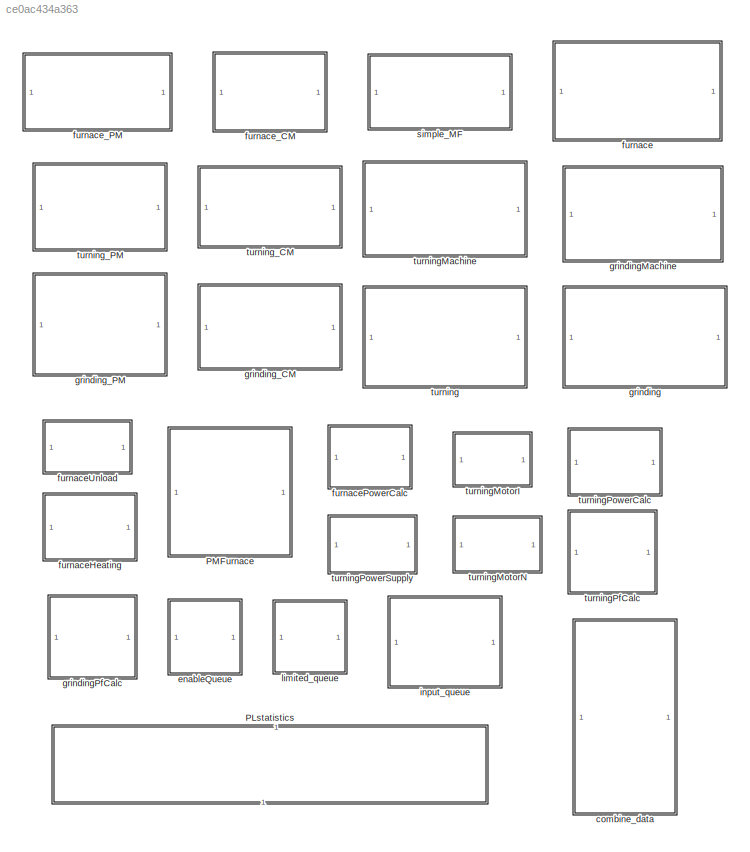
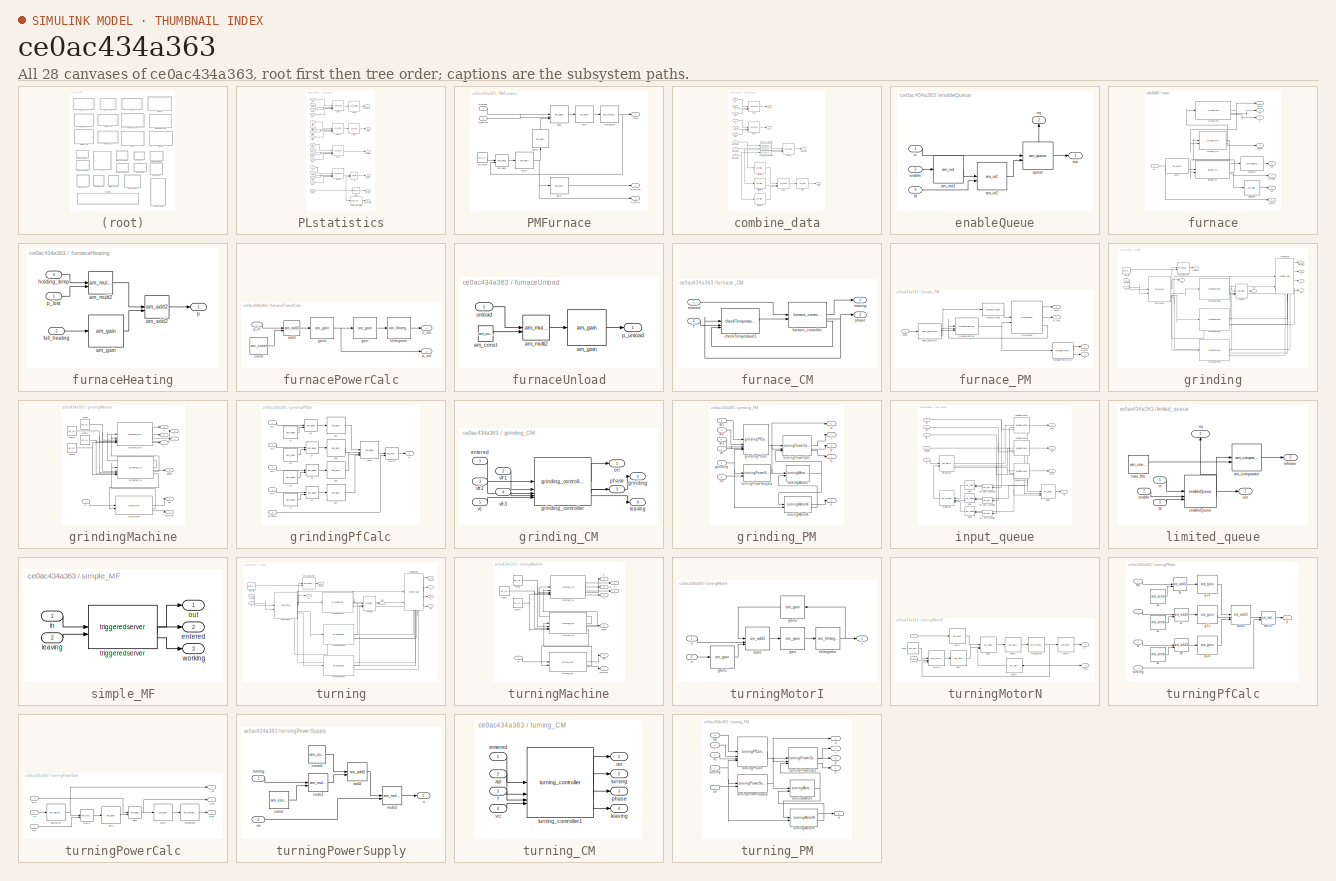
[diagram: thumbnail index - all 28 canvases of the model, root first then tree order]
MODEL slx_ce0ac434a363
KIND library
CONFIG AbsTol = auto
CONFIG EnableMultiTasking = off
CONFIG FixedStep = auto
CONFIG MaxStep = auto
CONFIG MinStep = auto
CONFIG RelTol = 1e-3
CONFIG SampleTimeConstraint = Unconstrained
CONFIG SolverName = VariableStepAuto
CONFIG StartTime = 0.0
CONFIG StopTime = 10.0
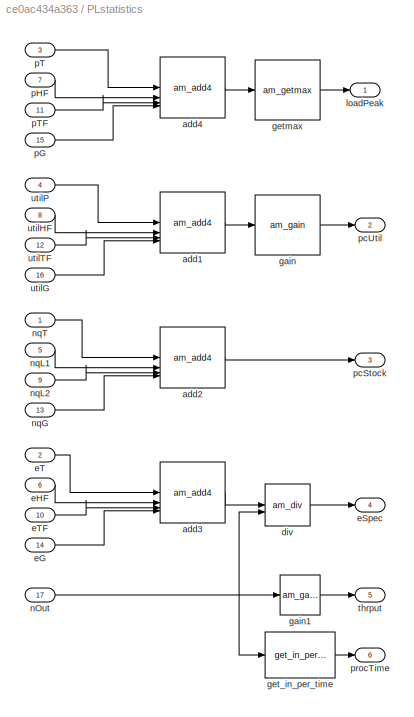
BLOCK [SubSystem] PLstatistics
  NameLocation = right
BLOCK [Reference] PLstatistics/add1  REF=NSA_DEVS_MATH_OPERATIONS/am_add4
  SourceBlock = NSA_DEVS_MATH_OPERATIONS/am_add4
  SourceProductName = Math Operations
  SourceType = Add4
BLOCK [Reference] PLstatistics/add2  REF=NSA_DEVS_MATH_OPERATIONS/am_add4
  SourceBlock = NSA_DEVS_MATH_OPERATIONS/am_add4
  SourceProductName = Math Operations
  SourceType = Add4
BLOCK [Reference] PLstatistics/add3  REF=NSA_DEVS_MATH_OPERATIONS/am_add4
  SourceBlock = NSA_DEVS_MATH_OPERATIONS/am_add4
  SourceProductName = Math Operations
  SourceType = Add4
BLOCK [Reference] PLstatistics/add4  REF=NSA_DEVS_MATH_OPERATIONS/am_add4
  SourceBlock = NSA_DEVS_MATH_OPERATIONS/am_add4
  SourceProductName = Math Operations
  SourceType = Add4
BLOCK [Reference] PLstatistics/div  REF=NSA_DEVS_MATH_OPERATIONS/am_div
  SourceBlock = NSA_DEVS_MATH_OPERATIONS/am_div
  SourceProductName = Math Operations
  SourceType = Div
BLOCK [Inport] PLstatistics/eG
  Port = 14
BLOCK [Inport] PLstatistics/eHF
  Port = 6
BLOCK [Outport] PLstatistics/eSpec
  Port = 4
BLOCK [Inport] PLstatistics/eT
  Port = 2
BLOCK [Inport] PLstatistics/eTF
  Port = 10
BLOCK [Reference] PLstatistics/gain  REF=NSA_DEVS_MATH_OPERATIONS/am_gain
  SourceBlock = NSA_DEVS_MATH_OPERATIONS/am_gain
  SourceProductName = Math Operations
  SourceType = Gain
BLOCK [Reference] PLstatistics/gain1  REF=NSA_DEVS_MATH_OPERATIONS/am_gain
  SourceBlock = NSA_DEVS_MATH_OPERATIONS/am_gain
  SourceProductName = Math Operations
  SourceType = Gain
BLOCK [Reference] PLstatistics/get_in_per_time  REF=ProductionLineLib_AM/get_in_per_time
  SourceBlock = ProductionLineLib_AM/get_in_per_time
  SourceType = Get_in_per_time
BLOCK [Reference] PLstatistics/getmax  REF=NSA_DEVS_STATISTICS/am_getmax
  SourceBlock = NSA_DEVS_STATISTICS/am_getmax
  SourceProductName = Statistics
  SourceType = Getmax
BLOCK [Outport] PLstatistics/loadPeak
BLOCK [Inport] PLstatistics/nOut
  Port = 17
BLOCK [Inport] PLstatistics/nqG
  Port = 13
BLOCK [Inport] PLstatistics/nqL1
  Port = 5
BLOCK [Inport] PLstatistics/nqL2
  Port = 9
BLOCK [Inport] PLstatistics/nqT
BLOCK [Inport] PLstatistics/pG
  Port = 15
BLOCK [Inport] PLstatistics/pHF
  Port = 7
BLOCK [Inport] PLstatistics/pT
  Port = 3
BLOCK [Inport] PLstatistics/pTF
  Port = 11
BLOCK [Outport] PLstatistics/pcStock
  Port = 3
BLOCK [Outport] PLstatistics/pcUtil
  Port = 2
BLOCK [Outport] PLstatistics/procTime
  Port = 6
BLOCK [Outport] PLstatistics/thrput
  Port = 5
BLOCK [Inport] PLstatistics/utilG
  Port = 16
BLOCK [Inport] PLstatistics/utilHF
  Port = 8
BLOCK [Inport] PLstatistics/utilP
  Port = 4
BLOCK [Inport] PLstatistics/utilTF
  Port = 12
BLOCK [SubSystem] PMFurnace
BLOCK [Outport] PMFurnace/Temp
BLOCK [Reference] PMFurnace/add3  REF=NSA_DEVS_MATH_OPERATIONS/am_add3
  SourceBlock = NSA_DEVS_MATH_OPERATIONS/am_add3
  SourceProductName = Math Operations
  SourceType = Add3
BLOCK [Reference] PMFurnace/am_add2  REF=NSA_DEVS_MATH_OPERATIONS/am_add2
  SourceBlock = NSA_DEVS_MATH_OPERATIONS/am_add2
  SourceProductName = Math Operations
  SourceType = Add2
BLOCK [Reference] PMFurnace/am_const  REF=NSA_DEVS_SOURCES/am_const
  SourceBlock = NSA_DEVS_SOURCES/am_const
  SourceProductName = Sources
  SourceType = Const
BLOCK [Reference] PMFurnace/gain  REF=NSA_DEVS_MATH_OPERATIONS/am_gain
  SourceBlock = NSA_DEVS_MATH_OPERATIONS/am_gain
  SourceProductName = Math Operations
  SourceType = Gain
BLOCK [Reference] PMFurnace/gain1  REF=NSA_DEVS_MATH_OPERATIONS/am_gain
  SourceBlock = NSA_DEVS_MATH_OPERATIONS/am_gain
  SourceProductName = Math Operations
  SourceType = Gain
BLOCK [Reference] PMFurnace/gain2  REF=NSA_DEVS_MATH_OPERATIONS/am_gain
  SourceBlock = NSA_DEVS_MATH_OPERATIONS/am_gain
  SourceProductName = Math Operations
  SourceType = Gain
BLOCK [Reference] PMFurnace/gain3  REF=NSA_DEVS_MATH_OPERATIONS/am_gain
  NameLocation = right
  SourceBlock = NSA_DEVS_MATH_OPERATIONS/am_gain
  SourceProductName = Math Operations
  SourceType = Gain
BLOCK [Reference] PMFurnace/hIntegrator  REF=NSA_DEVS_QSS/am_hIntegrator
  SourceBlock = NSA_DEVS_QSS/am_hIntegrator
  SourceProductName = QSS
  SourceType = HIntegrator
BLOCK [Inport] PMFurnace/p_heating
  Port = 2
BLOCK [Outport] PMFurnace/p_lost_kw
  Port = 2
BLOCK [Outport] PMFurnace/p_lost_w
  Port = 3
BLOCK [Inport] PMFurnace/p_unload
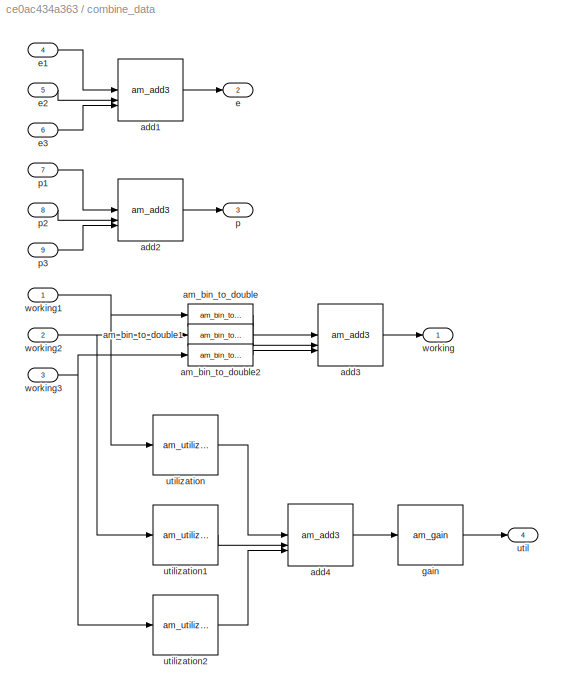
BLOCK [SubSystem] combine_data
BLOCK [Reference] combine_data/add1  REF=NSA_DEVS_MATH_OPERATIONS/am_add3
  SourceBlock = NSA_DEVS_MATH_OPERATIONS/am_add3
  SourceProductName = Math Operations
  SourceType = Add3
BLOCK [Reference] combine_data/add2  REF=NSA_DEVS_MATH_OPERATIONS/am_add3
  SourceBlock = NSA_DEVS_MATH_OPERATIONS/am_add3
  SourceProductName = Math Operations
  SourceType = Add3
BLOCK [Reference] combine_data/add3  REF=NSA_DEVS_MATH_OPERATIONS/am_add3
  SourceBlock = NSA_DEVS_MATH_OPERATIONS/am_add3
  SourceProductName = Math Operations
  SourceType = Add3
BLOCK [Reference] combine_data/add4  REF=NSA_DEVS_MATH_OPERATIONS/am_add3
  SourceBlock = NSA_DEVS_MATH_OPERATIONS/am_add3
  SourceProductName = Math Operations
  SourceType = Add3
BLOCK [Reference] combine_data/am_bin_to_double  REF=NSA_DEVS_DIGITALI3E_CONVERTER/am_bin_to_double
  SourceBlock = NSA_DEVS_DIGITALI3E_CONVERTER/am_bin_to_double
BLOCK [Reference] combine_data/am_bin_to_double1  REF=NSA_DEVS_DIGITALI3E_CONVERTER/am_bin_to_double
  SourceBlock = NSA_DEVS_DIGITALI3E_CONVERTER/am_bin_to_double
BLOCK [Reference] combine_data/am_bin_to_double2  REF=NSA_DEVS_DIGITALI3E_CONVERTER/am_bin_to_double
  SourceBlock = NSA_DEVS_DIGITALI3E_CONVERTER/am_bin_to_double
BLOCK [Outport] combine_data/e
  Port = 2
BLOCK [Inport] combine_data/e1
  Port = 4
BLOCK [Inport] combine_data/e2
  Port = 5
BLOCK [Inport] combine_data/e3
  Port = 6
BLOCK [Reference] combine_data/gain  REF=NSA_DEVS_MATH_OPERATIONS/am_gain
  SourceBlock = NSA_DEVS_MATH_OPERATIONS/am_gain
  SourceProductName = Math Operations
  SourceType = Gain
BLOCK [Outport] combine_data/p
  Port = 3
BLOCK [Inport] combine_data/p1
  Port = 7
BLOCK [Inport] combine_data/p2
  Port = 8
BLOCK [Inport] combine_data/p3
  Port = 9
BLOCK [Outport] combine_data/util
  NameLocation = top
  Port = 4
BLOCK [Reference] combine_data/utilization  REF=NSA_DEVS_STATISTICS/am_utilization
  SourceBlock = NSA_DEVS_STATISTICS/am_utilization
  SourceProductName = Statistics
  SourceType = Utilization
BLOCK [Reference] combine_data/utilization1  REF=NSA_DEVS_STATISTICS/am_utilization
  SourceBlock = NSA_DEVS_STATISTICS/am_utilization
  SourceProductName = Statistics
  SourceType = Utilization
BLOCK [Reference] combine_data/utilization2  REF=NSA_DEVS_STATISTICS/am_utilization
  SourceBlock = NSA_DEVS_STATISTICS/am_utilization
  SourceProductName = Statistics
  SourceType = Utilization
BLOCK [Outport] combine_data/working
BLOCK [Inport] combine_data/working1
BLOCK [Inport] combine_data/working2
  Port = 2
BLOCK [Inport] combine_data/working3
  Port = 3
BLOCK [SubSystem] enableQueue
  PortSchema = {"entries":[{"content":{"sides":[{"content":{"connectorIds":["In1","In2","In3"]},"type":"ConnectorPlacement.EquallySpacedRectSide","uuid":"2ad8f87e-7312-4304-b0af-e4f2759959c2"},{"content":{"connectorIds":["Out1"],"side":"RIGHT"},"type":"ConnectorPlacement.EquallySpacedRectSide","uuid":"09964865-65de-4b09-b55b-65dbc64d6c80"},{"content":{"connectorIds":["Out2"],"side":"TOP"},"type":"ConnectorPlacem...<+258ch>
BLOCK [Reference] enableQueue/am_not1  REF=NSA_DEVS_MATH_OPERATIONS/am_not
  SourceBlock = NSA_DEVS_MATH_OPERATIONS/am_not
  SourceProductName = Math Operations
  SourceType = Notgate
BLOCK [Reference] enableQueue/am_or2  REF=NSA_DEVS_MATH_OPERATIONS/am_or2
  SourceBlock = NSA_DEVS_MATH_OPERATIONS/am_or2
  SourceProductName = Math Operations
  SourceType = Or2
BLOCK [Inport] enableQueue/bl
  Port = 3
BLOCK [Inport] enableQueue/enable
  Port = 2
BLOCK [Inport] enableQueue/in
BLOCK [Outport] enableQueue/nq
  NameLocation = right
  Port = 2
BLOCK [Outport] enableQueue/out
BLOCK [Reference] enableQueue/queue  REF=NSA_DEVS_LOGISTICS/am_queue
  SourceBlock = NSA_DEVS_LOGISTICS/am_queue
  SourceProductName = Logistics
  SourceType = Queue
BLOCK [SubSystem] furnace
  PortSchema = {"entries":[{"content":{"sides":[{"content":{"connectorIds":["In1"]},"type":"ConnectorPlacement.EquallySpacedRectSide","uuid":"48eb3c0c-68de-4a57-9b4e-df051f691ee9"},{"content":{"connectorIds":["Out1","Out2"],"side":"RIGHT"},"type":"ConnectorPlacement.EquallySpacedRectSide","uuid":"00e094f9-0571-45d6-b681-fd41a6529743"},{"content":{"connectorIds":["Out3","Out4","Out5","Out6","Out7","Out8"],"side":...<+288ch>
BLOCK [Outport] furnace/Temp
  Port = 4
BLOCK [Reference] furnace/batch  REF=NSA_DEVS_LOGISTICS/am_batch
  SourceBlock = NSA_DEVS_LOGISTICS/am_batch
  SourceProductName = Logistics
  SourceType = Batch
BLOCK [Outport] furnace/e
  Port = 3
BLOCK [Reference] furnace/furnace_CM  REF=$bdroot/furnace_CM
  SourceBlock = $bdroot/furnace_CM
BLOCK [Reference] furnace/furnace_PM  REF=$bdroot/furnace_PM
  SourceBlock = $bdroot/furnace_PM
  SourceType = Furnace_PM
BLOCK [Inport] furnace/in
BLOCK [Outport] furnace/n_batch
  Port = 6
BLOCK [Outport] furnace/out
BLOCK [Outport] furnace/p
  Port = 5
BLOCK [Outport] furnace/phase
  Port = 8
BLOCK [Reference] furnace/simple_MF  REF=$bdroot/simple_MF
  LibrarySourceBlock = ProductionLineLib_CM/furnace_MF
  SourceBlock = $bdroot/simple_MF
BLOCK [Reference] furnace/unbatch  REF=NSA_DEVS_LOGISTICS/am_unbatch
  SourceBlock = NSA_DEVS_LOGISTICS/am_unbatch
  SourceProductName = Logistics
  SourceType = Unbatch
BLOCK [Outport] furnace/util
  Port = 7
BLOCK [Reference] furnace/utilization  REF=NSA_DEVS_STATISTICS/am_utilization
  SourceBlock = NSA_DEVS_STATISTICS/am_utilization
  SourceProductName = Statistics
  SourceType = Utilization
BLOCK [Outport] furnace/working
  Port = 2
BLOCK [SubSystem] furnaceHeating
BLOCK [Reference] furnaceHeating/am_add2  REF=NSA_DEVS_MATH_OPERATIONS/am_add2
  SourceBlock = NSA_DEVS_MATH_OPERATIONS/am_add2
  SourceProductName = Math Operations
  SourceType = Add2
BLOCK [Reference] furnaceHeating/am_gain  REF=NSA_DEVS_MATH_OPERATIONS/am_gain
  SourceBlock = NSA_DEVS_MATH_OPERATIONS/am_gain
  SourceProductName = Math Operations
  SourceType = Gain
BLOCK [Reference] furnaceHeating/am_multi2  REF=NSA_DEVS_MATH_OPERATIONS/am_mult2
  SourceBlock = NSA_DEVS_MATH_OPERATIONS/am_mult2
  SourceProductName = Math Operations
  SourceType = Mult2
BLOCK [Inport] furnaceHeating/full_heating
  Port = 2
BLOCK [Inport] furnaceHeating/holding_temp
  Port = 3
BLOCK [Outport] furnaceHeating/p
BLOCK [Inport] furnaceHeating/p_lost
BLOCK [SubSystem] furnacePowerCalc
BLOCK [Reference] furnacePowerCalc/add2  REF=NSA_DEVS_MATH_OPERATIONS/am_add2
  SourceBlock = NSA_DEVS_MATH_OPERATIONS/am_add2
  SourceProductName = Math Operations
  SourceType = Add2
BLOCK [Reference] furnacePowerCalc/const  REF=NSA_DEVS_SOURCES/am_const
  SourceBlock = NSA_DEVS_SOURCES/am_const
  SourceProductName = Sources
  SourceType = Const
BLOCK [Outport] furnacePowerCalc/e_out
BLOCK [Reference] furnacePowerCalc/gain  REF=NSA_DEVS_MATH_OPERATIONS/am_gain
  SourceBlock = NSA_DEVS_MATH_OPERATIONS/am_gain
  SourceProductName = Math Operations
  SourceType = Gain
BLOCK [Reference] furnacePowerCalc/gain1  REF=NSA_DEVS_MATH_OPERATIONS/am_gain
  SourceBlock = NSA_DEVS_MATH_OPERATIONS/am_gain
  SourceProductName = Math Operations
  SourceType = Gain
BLOCK [Reference] furnacePowerCalc/hIntegrator  REF=NSA_DEVS_QSS/am_hIntegrator
  SourceBlock = NSA_DEVS_QSS/am_hIntegrator
  SourceProductName = QSS
  SourceType = HIntegrator
BLOCK [Inport] furnacePowerCalc/p_in
BLOCK [Outport] furnacePowerCalc/p_out
  Port = 2
BLOCK [SubSystem] furnaceUnload
BLOCK [Reference] furnaceUnload/am_const  REF=NSA_DEVS_SOURCES/am_const
  SourceBlock = NSA_DEVS_SOURCES/am_const
  SourceProductName = Sources
  SourceType = Const
BLOCK [Reference] furnaceUnload/am_gain  REF=NSA_DEVS_MATH_OPERATIONS/am_gain
  SourceBlock = NSA_DEVS_MATH_OPERATIONS/am_gain
  SourceProductName = Math Operations
  SourceType = Gain
BLOCK [Reference] furnaceUnload/am_multi2  REF=NSA_DEVS_MATH_OPERATIONS/am_mult2
  SourceBlock = NSA_DEVS_MATH_OPERATIONS/am_mult2
  SourceProductName = Math Operations
  SourceType = Mult2
BLOCK [Outport] furnaceUnload/p_unload
BLOCK [Inport] furnaceUnload/unload
BLOCK [SubSystem] furnace_CM
BLOCK [Inport] furnace_CM/T
  Port = 2
BLOCK [Reference] furnace_CM/checkTemperature1  REF=ProductionLineLib_AM/checkTemperature
  SourceBlock = ProductionLineLib_AM/checkTemperature
  SourceType = CheckTemperature
BLOCK [Inport] furnace_CM/entered
BLOCK [Reference] furnace_CM/furnace_controller  REF=ProductionLineLib_AM/furnace_controller
  LibrarySourceBlock = ProductionLineLib/Atomics/furnacs_controller
  SourceBlock = ProductionLineLib_AM/furnace_controller
  SourceType = Furnace_controller
BLOCK [Outport] furnace_CM/leaving
BLOCK [Outport] furnace_CM/phase
  Port = 2
BLOCK [SubSystem] furnace_PM
BLOCK [Outport] furnace_PM/Energy
  Port = 3
BLOCK [Outport] furnace_PM/P
  Port = 2
BLOCK [Reference] furnace_PM/PMFurnace  REF=$bdroot/PMFurnace
  LibrarySourceBlock = ProductionLineLib_CM/PM_furnace
  SourceBlock = $bdroot/PMFurnace
BLOCK [Outport] furnace_PM/P_lost
  Port = 4
BLOCK [Outport] furnace_PM/Temp
BLOCK [Reference] furnace_PM/furnaceHeating  REF=$bdroot/furnaceHeating
  LibrarySourceBlock = ProductionLineLib_CM/PM_heating
  SourceBlock = $bdroot/furnaceHeating
BLOCK [Reference] furnace_PM/furnacePowerCalc  REF=$bdroot/furnacePowerCalc
  LibrarySourceBlock = ProductionLineLib_CM/PM_power_calc
  SourceBlock = $bdroot/furnacePowerCalc
BLOCK [Reference] furnace_PM/furnaceUnload  REF=$bdroot/furnaceUnload
  SourceBlock = $bdroot/furnaceUnload
BLOCK [Reference] furnace_PM/heat_controller  REF=ProductionLineLib_AM/heat_controller
  LibrarySourceBlock = ProductionLineLibAM/heatController
  SourceBlock = ProductionLineLib_AM/heat_controller
  SourceType = HeatController
BLOCK [Inport] furnace_PM/phase
BLOCK [SubSystem] grinding
  PortSchema = {"entries":[{"content":{"sides":[{"content":{"connectorIds":["In1","In2"]},"type":"ConnectorPlacement.EquallySpacedRectSide","uuid":"33cbe9ec-8ffd-4808-aa33-03a03d7697b3"},{"content":{"connectorIds":["Out1","Out2"],"side":"RIGHT"},"type":"ConnectorPlacement.EquallySpacedRectSide","uuid":"c4625700-92c7-457c-b718-8001350e1d76"},{"content":{"connectorIds":["Out3","Out4","Out5","Out6","Out7"],"side":"...<+287ch>
BLOCK [Reference] grinding/am_comparator  REF=NSA_DEVS_MATH_OPERATIONS/am_comparator
  SourceBlock = NSA_DEVS_MATH_OPERATIONS/am_comparator
  SourceProductName = Math Operations
  SourceType = Comparator
BLOCK [Reference] grinding/combine3  REF=NSA_DEVS_ROUTING/am_collect3
  SourceBlock = NSA_DEVS_ROUTING/am_collect3
  SourceProductName = Routing
  SourceType = Collect3
BLOCK [Reference] grinding/combineData  REF=$bdroot/combine_data
  SourceBlock = $bdroot/combine_data
BLOCK [Outport] grinding/e
  Port = 5
BLOCK [Inport] grinding/enable
  Port = 2
BLOCK [Reference] grinding/grindingMachine1  REF=$bdroot/grindingMachine
  SourceBlock = $bdroot/grindingMachine
BLOCK [Reference] grinding/grindingMachine2  REF=$bdroot/grindingMachine
  SourceBlock = $bdroot/grindingMachine
BLOCK [Reference] grinding/grindingMachine3  REF=$bdroot/grindingMachine
  SourceBlock = $bdroot/grindingMachine
BLOCK [Inport] grinding/in
BLOCK [Reference] grinding/input_queue  REF=$bdroot/input_queue
  SourceBlock = $bdroot/input_queue
BLOCK [Reference] grinding/max_fifo  REF=NSA_DEVS_SOURCES/am_const
  SourceBlock = NSA_DEVS_SOURCES/am_const
  SourceProductName = Sources
  SourceType = Const
BLOCK [Outport] grinding/nq
  Port = 4
BLOCK [Outport] grinding/out
BLOCK [Outport] grinding/p
  Port = 6
BLOCK [Outport] grinding/release
  Port = 2
BLOCK [Outport] grinding/util
  Port = 7
BLOCK [Outport] grinding/working
  Port = 3
BLOCK [SubSystem] grindingMachine
  PortSchema = {"entries":[{"content":{"sides":[{"content":{"connectorIds":["In1"]},"type":"ConnectorPlacement.EquallySpacedRectSide","uuid":"7ed7b3b0-123a-476c-9c35-5e38dde7b955"},{"content":{"connectorIds":["Out1"],"side":"RIGHT"},"type":"ConnectorPlacement.EquallySpacedRectSide","uuid":"8397d86f-174e-49cd-8a33-9d60b1d471dc"},{"content":{"connectorIds":["Out2","Out3","Out4","Out5","Out6","Out7","Out8"],"side":...<+288ch>
BLOCK [Reference] grindingMachine/const  REF=NSA_DEVS_SOURCES/am_const
  SourceBlock = NSA_DEVS_SOURCES/am_const
  SourceProductName = Sources
  SourceType = Const
BLOCK [Reference] grindingMachine/const1  REF=NSA_DEVS_SOURCES/am_const
  SourceBlock = NSA_DEVS_SOURCES/am_const
  SourceProductName = Sources
  SourceType = Const
BLOCK [Reference] grindingMachine/const2  REF=NSA_DEVS_SOURCES/am_const
  SourceBlock = NSA_DEVS_SOURCES/am_const
  SourceProductName = Sources
  SourceType = Const
BLOCK [Reference] grindingMachine/const3  REF=NSA_DEVS_SOURCES/am_const
  SourceBlock = NSA_DEVS_SOURCES/am_const
  SourceProductName = Sources
  SourceType = Const
BLOCK [Outport] grindingMachine/e
  Port = 3
BLOCK [Reference] grindingMachine/grinding_CM  REF=$bdroot/grinding_CM
  SourceBlock = $bdroot/grinding_CM
BLOCK [Reference] grindingMachine/grinding_PM  REF=$bdroot/grinding_PM
  SourceBlock = $bdroot/grinding_PM
BLOCK [Outport] grindingMachine/i
  Port = 6
BLOCK [Inport] grindingMachine/in
BLOCK [Outport] grindingMachine/n
  Port = 7
BLOCK [Outport] grindingMachine/out
BLOCK [Outport] grindingMachine/p
  Port = 4
BLOCK [Outport] grindingMachine/phase
  Port = 8
BLOCK [Reference] grindingMachine/simple_MF  REF=$bdroot/simple_MF
  SourceBlock = $bdroot/simple_MF
BLOCK [Outport] grindingMachine/u
  Port = 5
BLOCK [Outport] grindingMachine/working
  Port = 2
BLOCK [SubSystem] grindingPfCalc
BLOCK [Reference] grindingPfCalc/add4  REF=NSA_DEVS_MATH_OPERATIONS/am_add4
  SourceBlock = NSA_DEVS_MATH_OPERATIONS/am_add4
  SourceProductName = Math Operations
  SourceType = Add4
BLOCK [Reference] grindingPfCalc/c4  REF=NSA_DEVS_SOURCES/am_const
  SourceBlock = NSA_DEVS_SOURCES/am_const
  SourceProductName = Sources
  SourceType = Const
BLOCK [Reference] grindingPfCalc/c5  REF=NSA_DEVS_SOURCES/am_const
  SourceBlock = NSA_DEVS_SOURCES/am_const
  SourceProductName = Sources
  SourceType = Const
BLOCK [Reference] grindingPfCalc/c6  REF=NSA_DEVS_SOURCES/am_const
  SourceBlock = NSA_DEVS_SOURCES/am_const
  SourceProductName = Sources
  SourceType = Const
BLOCK [Reference] grindingPfCalc/c7  REF=NSA_DEVS_SOURCES/am_const
  SourceBlock = NSA_DEVS_SOURCES/am_const
  SourceProductName = Sources
  SourceType = Const
BLOCK [Reference] grindingPfCalc/g14  REF=NSA_DEVS_MATH_OPERATIONS/am_gain
  SourceBlock = NSA_DEVS_MATH_OPERATIONS/am_gain
  SourceProductName = Math Operations
  SourceType = Gain
BLOCK [Reference] grindingPfCalc/g15  REF=NSA_DEVS_MATH_OPERATIONS/am_gain
  SourceBlock = NSA_DEVS_MATH_OPERATIONS/am_gain
  SourceProductName = Math Operations
  SourceType = Gain
BLOCK [Reference] grindingPfCalc/g16  REF=NSA_DEVS_MATH_OPERATIONS/am_gain
  SourceBlock = NSA_DEVS_MATH_OPERATIONS/am_gain
  SourceProductName = Math Operations
  SourceType = Gain
BLOCK [Reference] grindingPfCalc/g17  REF=NSA_DEVS_MATH_OPERATIONS/am_gain
  SourceBlock = NSA_DEVS_MATH_OPERATIONS/am_gain
  SourceProductName = Math Operations
  SourceType = Gain
BLOCK [Inport] grindingPfCalc/grinding
  Port = 5
BLOCK [Reference] grindingPfCalc/multi2  REF=NSA_DEVS_MATH_OPERATIONS/am_mult2
  SourceBlock = NSA_DEVS_MATH_OPERATIONS/am_mult2
  SourceProductName = Math Operations
  SourceType = Mult2
BLOCK [Outport] grindingPfCalc/p
BLOCK [Inport] grindingPfCalc/vfr1
BLOCK [Inport] grindingPfCalc/vfr2
  Port = 2
BLOCK [Inport] grindingPfCalc/vfr3
  Port = 3
BLOCK [Inport] grindingPfCalc/vfr4
  Port = 4
BLOCK [Reference] grindingPfCalc/z1  REF=NSA_DEVS_MATH_OPERATIONS/am_add2
  SourceBlock = NSA_DEVS_MATH_OPERATIONS/am_add2
  SourceProductName = Math Operations
  SourceType = Add2
BLOCK [Reference] grindingPfCalc/z6  REF=NSA_DEVS_MATH_OPERATIONS/am_add2
  SourceBlock = NSA_DEVS_MATH_OPERATIONS/am_add2
  SourceProductName = Math Operations
  SourceType = Add2
BLOCK [Reference] grindingPfCalc/z7  REF=NSA_DEVS_MATH_OPERATIONS/am_add2
  SourceBlock = NSA_DEVS_MATH_OPERATIONS/am_add2
  SourceProductName = Math Operations
  SourceType = Add2
BLOCK [Reference] grindingPfCalc/z8  REF=NSA_DEVS_MATH_OPERATIONS/am_add2
  SourceBlock = NSA_DEVS_MATH_OPERATIONS/am_add2
  SourceProductName = Math Operations
  SourceType = Add2
BLOCK [SubSystem] grinding_CM
BLOCK [Inport] grinding_CM/entered
BLOCK [Outport] grinding_CM/grinding
  Port = 2
BLOCK [Reference] grinding_CM/grinding_controller  REF=ProductionLineLib_AM/grinding_controller
  SourceBlock = ProductionLineLib_AM/grinding_controller
  SourceType = Grinding_controller
BLOCK [Outport] grinding_CM/leaving
  Port = 4
BLOCK [Outport] grinding_CM/on
BLOCK [Outport] grinding_CM/phase
  Port = 3
BLOCK [Inport] grinding_CM/vc
  Port = 5
BLOCK [Inport] grinding_CM/vfr1
  Port = 2
BLOCK [Inport] grinding_CM/vfr2
  Port = 3
BLOCK [Inport] grinding_CM/vfr3
  Port = 4
BLOCK [SubSystem] grinding_PM
BLOCK [Outport] grinding_PM/e
BLOCK [Inport] grinding_PM/grinding
  Port = 2
BLOCK [Reference] grinding_PM/grindingPfCalc  REF=$bdroot/grindingPfCalc
  SourceBlock = $bdroot/grindingPfCalc
BLOCK [Outport] grinding_PM/i
  Port = 4
BLOCK [Outport] grinding_PM/n
  Port = 5
BLOCK [Inport] grinding_PM/on
BLOCK [Outport] grinding_PM/p
  Port = 3
BLOCK [Reference] grinding_PM/turningMotorI  REF=$bdroot/turningMotorI
  SourceBlock = $bdroot/turningMotorI
BLOCK [Reference] grinding_PM/turningMotorN  REF=$bdroot/turningMotorN
  SourceBlock = $bdroot/turningMotorN
BLOCK [Reference] grinding_PM/turningPowerCalc  REF=$bdroot/turningPowerCalc
  SourceBlock = $bdroot/turningPowerCalc
BLOCK [Reference] grinding_PM/turningPowerSupply  REF=$bdroot/turningPowerSupply
  SourceBlock = $bdroot/turningPowerSupply
BLOCK [Outport] grinding_PM/u
  Port = 2
BLOCK [Inport] grinding_PM/vc
  Port = 6
BLOCK [Inport] grinding_PM/vfr1
  Port = 3
BLOCK [Inport] grinding_PM/vfr2
  Port = 4
BLOCK [Inport] grinding_PM/vfr3
  Port = 5
BLOCK [SubSystem] input_queue
BLOCK [Reference] input_queue/add  REF=NSA_DEVS_MATH_OPERATIONS/am_add2
  SourceBlock = NSA_DEVS_MATH_OPERATIONS/am_add2
  SourceProductName = Math Operations
  SourceType = Add2
BLOCK [Reference] input_queue/add1  REF=NSA_DEVS_MATH_OPERATIONS/am_add2
  SourceBlock = NSA_DEVS_MATH_OPERATIONS/am_add2
  SourceProductName = Math Operations
  SourceType = Add2
BLOCK [Reference] input_queue/add2  REF=NSA_DEVS_MATH_OPERATIONS/am_add2
  SourceBlock = NSA_DEVS_MATH_OPERATIONS/am_add2
  SourceProductName = Math Operations
  SourceType = Add2
BLOCK [Reference] input_queue/add3  REF=NSA_DEVS_MATH_OPERATIONS/am_add3
  SourceBlock = NSA_DEVS_MATH_OPERATIONS/am_add3
  SourceProductName = Math Operations
  SourceType = Add3
BLOCK [Reference] input_queue/am_bin_to_double  REF=NSA_DEVS_DIGITALI3E_CONVERTER/am_bin_to_double
  SourceBlock = NSA_DEVS_DIGITALI3E_CONVERTER/am_bin_to_double
BLOCK [Reference] input_queue/am_bin_to_double1  REF=NSA_DEVS_DIGITALI3E_CONVERTER/am_bin_to_double
  SourceBlock = NSA_DEVS_DIGITALI3E_CONVERTER/am_bin_to_double
BLOCK [Reference] input_queue/am_bin_to_double2  REF=NSA_DEVS_DIGITALI3E_CONVERTER/am_bin_to_double
  SourceBlock = NSA_DEVS_DIGITALI3E_CONVERTER/am_bin_to_double
BLOCK [Inport] input_queue/bl1
  Port = 3
BLOCK [Inport] input_queue/bl2
  Port = 4
BLOCK [Inport] input_queue/bl3
  Port = 5
BLOCK [Reference] input_queue/distribute3  REF=NSA_DEVS_ROUTING/am_distribute3
  SourceBlock = NSA_DEVS_ROUTING/am_distribute3
  SourceProductName = Routing
  SourceType = Distribute3
BLOCK [Inport] input_queue/enable
BLOCK [Reference] input_queue/enableQueue1  REF=$bdroot/enableQueue
  SourceBlock = $bdroot/enableQueue
BLOCK [Reference] input_queue/enableQueue2  REF=$bdroot/enableQueue
  SourceBlock = $bdroot/enableQueue
BLOCK [Reference] input_queue/enableQueue3  REF=$bdroot/enableQueue
  SourceBlock = $bdroot/enableQueue
BLOCK [Inport] input_queue/in
  Port = 2
BLOCK [Outport] input_queue/nq
BLOCK [Outport] input_queue/out1
  Port = 2
BLOCK [Outport] input_queue/out2
  Port = 3
BLOCK [Outport] input_queue/out3
  Port = 4
BLOCK [Reference] input_queue/smallestin3  REF=NSA_DEVS_ROUTING/am_smallestin3
  SourceBlock = NSA_DEVS_ROUTING/am_smallestin3
  SourceProductName = Routing
  SourceType = Smallestin3
BLOCK [SubSystem] limited_queue
  PortSchema = {"entries":[{"content":{"sides":[{"content":{"connectorIds":["In1","In2","In3"]},"type":"ConnectorPlacement.EquallySpacedRectSide","uuid":"9e9b3e08-535a-451f-ab10-868cecb889f8"},{"content":{"connectorIds":["Out1","Out2"],"side":"RIGHT"},"type":"ConnectorPlacement.EquallySpacedRectSide","uuid":"54afad95-e8b1-4ff2-82f7-3599ee077844"},{"content":{"connectorIds":["Out3"],"side":"TOP"},"type":"Connecto...<+265ch>
BLOCK [Reference] limited_queue/am_comparator  REF=NSA_DEVS_MATH_OPERATIONS/am_comparator
  SourceBlock = NSA_DEVS_MATH_OPERATIONS/am_comparator
  SourceProductName = Math Operations
  SourceType = Comparator
BLOCK [Inport] limited_queue/bl
  Port = 3
BLOCK [Inport] limited_queue/enable
  Port = 2
BLOCK [Reference] limited_queue/enableQueue  REF=$bdroot/enableQueue
  SourceBlock = $bdroot/enableQueue
BLOCK [Inport] limited_queue/in
BLOCK [Reference] limited_queue/max_fifo  REF=NSA_DEVS_SOURCES/am_const
  SourceBlock = NSA_DEVS_SOURCES/am_const
  SourceProductName = Sources
  SourceType = Const
BLOCK [Outport] limited_queue/nq
  NameLocation = right
  Port = 3
BLOCK [Outport] limited_queue/out
BLOCK [Outport] limited_queue/release
  Port = 2
BLOCK [SubSystem] simple_MF
BLOCK [Outport] simple_MF/entered
  Port = 2
BLOCK [Inport] simple_MF/in
BLOCK [Inport] simple_MF/leaving
  Port = 2
BLOCK [Outport] simple_MF/out
BLOCK [Reference] simple_MF/triggeredserver  REF=ProductionLineLib_AM/triggeredserver
  LibrarySourceBlock = ProductionLineLib_AM/furnace_server
  SourceBlock = ProductionLineLib_AM/triggeredserver
  SourceType = Triggeredserver
BLOCK [Outport] simple_MF/working
  Port = 3
BLOCK [SubSystem] turning
  PortSchema = {"entries":[{"content":{"sides":[{"content":{"connectorIds":["In1","In2"]},"type":"ConnectorPlacement.EquallySpacedRectSide","uuid":"33cbe9ec-8ffd-4808-aa33-03a03d7697b3"},{"content":{"connectorIds":["Out1","Out2"],"side":"RIGHT"},"type":"ConnectorPlacement.EquallySpacedRectSide","uuid":"c4625700-92c7-457c-b718-8001350e1d76"},{"content":{"connectorIds":["Out3","Out4","Out5","Out6","Out7"],"side":"...<+287ch>
BLOCK [Reference] turning/am_comparator  REF=NSA_DEVS_MATH_OPERATIONS/am_comparator
  SourceBlock = NSA_DEVS_MATH_OPERATIONS/am_comparator
  SourceProductName = Math Operations
  SourceType = Comparator
BLOCK [Reference] turning/combine3  REF=NSA_DEVS_ROUTING/am_collect3
  SourceBlock = NSA_DEVS_ROUTING/am_collect3
  SourceProductName = Routing
  SourceType = Collect3
BLOCK [Reference] turning/combineData  REF=$bdroot/combine_data
  SourceBlock = $bdroot/combine_data
BLOCK [Outport] turning/e
  Port = 5
BLOCK [Inport] turning/enable
  Port = 2
BLOCK [Inport] turning/in
BLOCK [Reference] turning/input_queue  REF=$bdroot/input_queue
  SourceBlock = $bdroot/input_queue
BLOCK [Reference] turning/max_fifo  REF=NSA_DEVS_SOURCES/am_const
  SourceBlock = NSA_DEVS_SOURCES/am_const
  SourceProductName = Sources
  SourceType = Const
BLOCK [Outport] turning/nq
  Port = 4
BLOCK [Outport] turning/out
BLOCK [Outport] turning/p
  Port = 6
BLOCK [Outport] turning/release
  Port = 2
BLOCK [Reference] turning/turningMachine1  REF=$bdroot/turningMachine
  SourceBlock = $bdroot/turningMachine
BLOCK [Reference] turning/turningMachine2  REF=$bdroot/turningMachine
  SourceBlock = $bdroot/turningMachine
BLOCK [Reference] turning/turningMachine3  REF=$bdroot/turningMachine
  SourceBlock = $bdroot/turningMachine
BLOCK [Outport] turning/util
  Port = 7
BLOCK [Outport] turning/working
  Port = 3
BLOCK [SubSystem] turningMachine
  PortSchema = {"entries":[{"content":{"sides":[{"content":{"connectorIds":["In1"]},"type":"ConnectorPlacement.EquallySpacedRectSide","uuid":"7ed7b3b0-123a-476c-9c35-5e38dde7b955"},{"content":{"connectorIds":["Out1"],"side":"RIGHT"},"type":"ConnectorPlacement.EquallySpacedRectSide","uuid":"8397d86f-174e-49cd-8a33-9d60b1d471dc"},{"content":{"connectorIds":["Out2","Out3","Out4","Out5","Out6","Out7","Out8"],"side":...<+288ch>
BLOCK [Reference] turningMachine/const  REF=NSA_DEVS_SOURCES/am_const
  SourceBlock = NSA_DEVS_SOURCES/am_const
  SourceProductName = Sources
  SourceType = Const
BLOCK [Reference] turningMachine/const1  REF=NSA_DEVS_SOURCES/am_const
  SourceBlock = NSA_DEVS_SOURCES/am_const
  SourceProductName = Sources
  SourceType = Const
BLOCK [Reference] turningMachine/const2  REF=NSA_DEVS_SOURCES/am_const
  SourceBlock = NSA_DEVS_SOURCES/am_const
  SourceProductName = Sources
  SourceType = Const
BLOCK [Outport] turningMachine/e
  Port = 3
BLOCK [Outport] turningMachine/i
  Port = 6
BLOCK [Inport] turningMachine/in
BLOCK [Outport] turningMachine/n
  Port = 7
BLOCK [Outport] turningMachine/out
BLOCK [Outport] turningMachine/p
  Port = 4
BLOCK [Outport] turningMachine/phase
  Port = 8
BLOCK [Reference] turningMachine/simple_MF  REF=$bdroot/simple_MF
  SourceBlock = $bdroot/simple_MF
BLOCK [Reference] turningMachine/turning_CM  REF=$bdroot/turning_CM
  SourceBlock = $bdroot/turning_CM
BLOCK [Reference] turningMachine/turning_PM  REF=$bdroot/turning_PM
  SourceBlock = $bdroot/turning_PM
BLOCK [Outport] turningMachine/u
  Port = 5
BLOCK [Outport] turningMachine/working
  Port = 2
BLOCK [SubSystem] turningMotorI
BLOCK [Reference] turningMotorI/add3  REF=NSA_DEVS_MATH_OPERATIONS/am_add3
  SourceBlock = NSA_DEVS_MATH_OPERATIONS/am_add3
  SourceProductName = Math Operations
  SourceType = Add3
BLOCK [Reference] turningMotorI/gain  REF=NSA_DEVS_MATH_OPERATIONS/am_gain
  SourceBlock = NSA_DEVS_MATH_OPERATIONS/am_gain
  SourceProductName = Math Operations
  SourceType = Gain
BLOCK [Reference] turningMotorI/gain1  REF=NSA_DEVS_MATH_OPERATIONS/am_gain
  SourceBlock = NSA_DEVS_MATH_OPERATIONS/am_gain
  SourceProductName = Math Operations
  SourceType = Gain
BLOCK [Reference] turningMotorI/gain2  REF=NSA_DEVS_MATH_OPERATIONS/am_gain
  SourceBlock = NSA_DEVS_MATH_OPERATIONS/am_gain
  SourceProductName = Math Operations
  SourceType = Gain
BLOCK [Reference] turningMotorI/hIntegrator  REF=NSA_DEVS_QSS/am_hIntegrator
  SourceBlock = NSA_DEVS_QSS/am_hIntegrator
  SourceProductName = QSS
  SourceType = HIntegrator
BLOCK [Outport] turningMotorI/i
BLOCK [Inport] turningMotorI/n
  Port = 2
BLOCK [Inport] turningMotorI/u
BLOCK [SubSystem] turningMotorN
BLOCK [Reference] turningMotorN/add3  REF=NSA_DEVS_MATH_OPERATIONS/am_add3
  SourceBlock = NSA_DEVS_MATH_OPERATIONS/am_add3
  SourceProductName = Math Operations
  SourceType = Add3
BLOCK [Reference] turningMotorN/const  REF=NSA_DEVS_SOURCES/am_const
  SourceBlock = NSA_DEVS_SOURCES/am_const
  SourceProductName = Sources
  SourceType = Const
BLOCK [Reference] turningMotorN/gain  REF=NSA_DEVS_MATH_OPERATIONS/am_gain
  SourceBlock = NSA_DEVS_MATH_OPERATIONS/am_gain
  SourceProductName = Math Operations
  SourceType = Gain
BLOCK [Reference] turningMotorN/gain1  REF=NSA_DEVS_MATH_OPERATIONS/am_gain
  SourceBlock = NSA_DEVS_MATH_OPERATIONS/am_gain
  SourceProductName = Math Operations
  SourceType = Gain
BLOCK [Reference] turningMotorN/gain2  REF=NSA_DEVS_MATH_OPERATIONS/am_gain
  SourceBlock = NSA_DEVS_MATH_OPERATIONS/am_gain
  SourceProductName = Math Operations
  SourceType = Gain
BLOCK [Reference] turningMotorN/gain3  REF=NSA_DEVS_MATH_OPERATIONS/am_gain
  SourceBlock = NSA_DEVS_MATH_OPERATIONS/am_gain
  SourceProductName = Math Operations
  SourceType = Gain
BLOCK [Reference] turningMotorN/gain4  REF=NSA_DEVS_MATH_OPERATIONS/am_gain
  SourceBlock = NSA_DEVS_MATH_OPERATIONS/am_gain
  SourceProductName = Math Operations
  SourceType = Gain
BLOCK [Reference] turningMotorN/hIntegrator  REF=NSA_DEVS_QSS/am_hIntegrator
  SourceBlock = NSA_DEVS_QSS/am_hIntegrator
  SourceProductName = QSS
  SourceType = HIntegrator
BLOCK [Inport] turningMotorN/i
BLOCK [Reference] turningMotorN/mult3  REF=NSA_DEVS_MATH_OPERATIONS/am_mult3
  SourceBlock = NSA_DEVS_MATH_OPERATIONS/am_mult3
  SourceProductName = Math Operations
  SourceType = Mult3
BLOCK [Outport] turningMotorN/n
BLOCK [Outport] turningMotorN/n_rad
  Port = 2
BLOCK [Inport] turningMotorN/turning
  Port = 2
BLOCK [SubSystem] turningPfCalc
BLOCK [Reference] turningPfCalc/add3  REF=NSA_DEVS_MATH_OPERATIONS/am_add3
  SourceBlock = NSA_DEVS_MATH_OPERATIONS/am_add3
  SourceProductName = Math Operations
  SourceType = Add3
BLOCK [Inport] turningPfCalc/ap
BLOCK [Reference] turningPfCalc/c4  REF=NSA_DEVS_SOURCES/am_const
  SourceBlock = NSA_DEVS_SOURCES/am_const
  SourceProductName = Sources
  SourceType = Const
BLOCK [Reference] turningPfCalc/c5  REF=NSA_DEVS_SOURCES/am_const
  SourceBlock = NSA_DEVS_SOURCES/am_const
  SourceProductName = Sources
  SourceType = Const
BLOCK [Reference] turningPfCalc/c6  REF=NSA_DEVS_SOURCES/am_const
  SourceBlock = NSA_DEVS_SOURCES/am_const
  SourceProductName = Sources
  SourceType = Const
BLOCK [Inport] turningPfCalc/f
  Port = 2
BLOCK [Reference] turningPfCalc/g14  REF=NSA_DEVS_MATH_OPERATIONS/am_gain
  SourceBlock = NSA_DEVS_MATH_OPERATIONS/am_gain
  SourceProductName = Math Operations
  SourceType = Gain
BLOCK [Reference] turningPfCalc/g15  REF=NSA_DEVS_MATH_OPERATIONS/am_gain
  SourceBlock = NSA_DEVS_MATH_OPERATIONS/am_gain
  SourceProductName = Math Operations
  SourceType = Gain
BLOCK [Reference] turningPfCalc/g16  REF=NSA_DEVS_MATH_OPERATIONS/am_gain
  SourceBlock = NSA_DEVS_MATH_OPERATIONS/am_gain
  SourceProductName = Math Operations
  SourceType = Gain
BLOCK [Reference] turningPfCalc/multi2  REF=NSA_DEVS_MATH_OPERATIONS/am_mult2
  SourceBlock = NSA_DEVS_MATH_OPERATIONS/am_mult2
  SourceProductName = Math Operations
  SourceType = Mult2
BLOCK [Outport] turningPfCalc/p
BLOCK [Inport] turningPfCalc/turning
  Port = 4
BLOCK [Inport] turningPfCalc/vc
  Port = 3
BLOCK [Reference] turningPfCalc/z6  REF=NSA_DEVS_MATH_OPERATIONS/am_add2
  SourceBlock = NSA_DEVS_MATH_OPERATIONS/am_add2
  SourceProductName = Math Operations
  SourceType = Add2
BLOCK [Reference] turningPfCalc/z7  REF=NSA_DEVS_MATH_OPERATIONS/am_add2
  SourceBlock = NSA_DEVS_MATH_OPERATIONS/am_add2
  SourceProductName = Math Operations
  SourceType = Add2
BLOCK [Reference] turningPfCalc/z8  REF=NSA_DEVS_MATH_OPERATIONS/am_add2
  SourceBlock = NSA_DEVS_MATH_OPERATIONS/am_add2
  SourceProductName = Math Operations
  SourceType = Add2
BLOCK [SubSystem] turningPowerCalc
BLOCK [Reference] turningPowerCalc/add2  REF=NSA_DEVS_MATH_OPERATIONS/am_add2
  SourceBlock = NSA_DEVS_MATH_OPERATIONS/am_add2
  SourceProductName = Math Operations
  SourceType = Add2
BLOCK [Outport] turningPowerCalc/e_out
  Port = 3
BLOCK [Reference] turningPowerCalc/gain  REF=NSA_DEVS_MATH_OPERATIONS/am_gain
  SourceBlock = NSA_DEVS_MATH_OPERATIONS/am_gain
  SourceProductName = Math Operations
  SourceType = Gain
BLOCK [Reference] turningPowerCalc/gain1  REF=NSA_DEVS_MATH_OPERATIONS/am_gain
  SourceBlock = NSA_DEVS_MATH_OPERATIONS/am_gain
  SourceProductName = Math Operations
  SourceType = Gain
BLOCK [Reference] turningPowerCalc/hIntegrator  REF=NSA_DEVS_QSS/am_hIntegrator
  SourceBlock = NSA_DEVS_QSS/am_hIntegrator
  SourceProductName = QSS
  SourceType = HIntegrator
BLOCK [Inport] turningPowerCalc/i_in
  Port = 3
BLOCK [Outport] turningPowerCalc/i_out
BLOCK [Reference] turningPowerCalc/multi2  REF=NSA_DEVS_MATH_OPERATIONS/am_mult2
  SourceBlock = NSA_DEVS_MATH_OPERATIONS/am_mult2
  SourceProductName = Math Operations
  SourceType = Mult2
BLOCK [Inport] turningPowerCalc/p_in
BLOCK [Outport] turningPowerCalc/p_out
  Port = 2
BLOCK [Reference] turningPowerCalc/saturation  REF=NSA_DEVS_MATH_OPERATIONS/am_saturation
  SourceBlock = NSA_DEVS_MATH_OPERATIONS/am_saturation
  SourceProductName = Math Operations
  SourceType = Saturation
BLOCK [Inport] turningPowerCalc/u_in
  Port = 2
BLOCK [SubSystem] turningPowerSupply
BLOCK [Reference] turningPowerSupply/add2  REF=NSA_DEVS_MATH_OPERATIONS/am_add2
  SourceBlock = NSA_DEVS_MATH_OPERATIONS/am_add2
  SourceProductName = Math Operations
  SourceType = Add2
BLOCK [Reference] turningPowerSupply/const  REF=NSA_DEVS_SOURCES/am_const
  SourceBlock = NSA_DEVS_SOURCES/am_const
  SourceProductName = Sources
  SourceType = Const
BLOCK [Reference] turningPowerSupply/const1  REF=NSA_DEVS_SOURCES/am_const
  SourceBlock = NSA_DEVS_SOURCES/am_const
  SourceProductName = Sources
  SourceType = Const
BLOCK [Reference] turningPowerSupply/multi1  REF=NSA_DEVS_MATH_OPERATIONS/am_mult2
  SourceBlock = NSA_DEVS_MATH_OPERATIONS/am_mult2
  SourceProductName = Math Operations
  SourceType = Mult2
BLOCK [Reference] turningPowerSupply/multi2  REF=NSA_DEVS_MATH_OPERATIONS/am_mult2
  SourceBlock = NSA_DEVS_MATH_OPERATIONS/am_mult2
  SourceProductName = Math Operations
  SourceType = Mult2
BLOCK [Inport] turningPowerSupply/on
  Port = 2
BLOCK [Inport] turningPowerSupply/turning
BLOCK [Outport] turningPowerSupply/u
BLOCK [SubSystem] turning_CM
BLOCK [Inport] turning_CM/ap
  Port = 2
BLOCK [Inport] turning_CM/entered
BLOCK [Inport] turning_CM/f
  Port = 3
BLOCK [Outport] turning_CM/leaving
  Port = 4
BLOCK [Outport] turning_CM/on
BLOCK [Outport] turning_CM/phase
  Port = 3
BLOCK [Outport] turning_CM/turning
  Port = 2
BLOCK [Reference] turning_CM/turning_controller1  REF=ProductionLineLib_AM/turning_controller
  SourceBlock = ProductionLineLib_AM/turning_controller
  SourceType = Turning_controller
BLOCK [Inport] turning_CM/vc
  Port = 4
BLOCK [SubSystem] turning_PM
BLOCK [Inport] turning_PM/ap
  Port = 3
BLOCK [Outport] turning_PM/e
BLOCK [Inport] turning_PM/f
  Port = 4
BLOCK [Outport] turning_PM/i
  Port = 4
BLOCK [Outport] turning_PM/n
  Port = 5
BLOCK [Inport] turning_PM/on
BLOCK [Outport] turning_PM/p
  Port = 3
BLOCK [Inport] turning_PM/turning
  Port = 2
BLOCK [Reference] turning_PM/turningMotorI  REF=$bdroot/turningMotorI
  SourceBlock = $bdroot/turningMotorI
BLOCK [Reference] turning_PM/turningMotorN  REF=$bdroot/turningMotorN
  SourceBlock = $bdroot/turningMotorN
BLOCK [Reference] turning_PM/turningPfCalc  REF=$bdroot/turningPfCalc
  SourceBlock = $bdroot/turningPfCalc
BLOCK [Reference] turning_PM/turningPowerCalc  REF=$bdroot/turningPowerCalc
  SourceBlock = $bdroot/turningPowerCalc
BLOCK [Reference] turning_PM/turningPowerSupply  REF=$bdroot/turningPowerSupply
  SourceBlock = $bdroot/turningPowerSupply
BLOCK [Outport] turning_PM/u
  Port = 2
BLOCK [Inport] turning_PM/vc
  Port = 5
LINE PLstatistics/add1:1 -> PLstatistics/gain:1
LINE PLstatistics/add2:1 -> PLstatistics/pcStock:1
LINE PLstatistics/add3:1 -> PLstatistics/div:1
LINE PLstatistics/add4:1 -> PLstatistics/getmax:1
LINE PLstatistics/div:1 -> PLstatistics/eSpec:1
LINE PLstatistics/eG:1 -> PLstatistics/add3:4
LINE PLstatistics/eHF:1 -> PLstatistics/add3:2
LINE PLstatistics/eT:1 -> PLstatistics/add3:1
LINE PLstatistics/eTF:1 -> PLstatistics/add3:3
LINE PLstatistics/gain1:1 -> PLstatistics/thrput:1
LINE PLstatistics/gain:1 -> PLstatistics/pcUtil:1
LINE PLstatistics/get_in_per_time:1 -> PLstatistics/procTime:1
LINE PLstatistics/getmax:1 -> PLstatistics/loadPeak:1
NET PLstatistics/nOut:1 -> PLstatistics/div:2, PLstatistics/gain1:1, PLstatistics/get_in_per_time:1
LINE PLstatistics/nqG:1 -> PLstatistics/add2:4
LINE PLstatistics/nqL1:1 -> PLstatistics/add2:2
LINE PLstatistics/nqL2:1 -> PLstatistics/add2:3
LINE PLstatistics/nqT:1 -> PLstatistics/add2:1
LINE PLstatistics/pG:1 -> PLstatistics/add4:4
LINE PLstatistics/pHF:1 -> PLstatistics/add4:2
LINE PLstatistics/pT:1 -> PLstatistics/add4:1
LINE PLstatistics/pTF:1 -> PLstatistics/add4:3
LINE PLstatistics/utilG:1 -> PLstatistics/add1:4
LINE PLstatistics/utilHF:1 -> PLstatistics/add1:2
LINE PLstatistics/utilP:1 -> PLstatistics/add1:1
LINE PLstatistics/utilTF:1 -> PLstatistics/add1:3
LINE PMFurnace/add3:1 -> PMFurnace/gain:1
LINE PMFurnace/am_add2:1 -> PMFurnace/gain1:1
LINE PMFurnace/am_const:1 -> PMFurnace/am_add2:1
NET PMFurnace/gain1:1 -> PMFurnace/gain2:1, PMFurnace/gain3:1, PMFurnace/p_lost_w:1
LINE PMFurnace/gain2:1 -> PMFurnace/p_lost_kw:1
LINE PMFurnace/gain3:1 -> PMFurnace/add3:3
LINE PMFurnace/gain:1 -> PMFurnace/hIntegrator:1
NET PMFurnace/hIntegrator:1 -> PMFurnace/Temp:1, PMFurnace/am_add2:2
LINE PMFurnace/p_heating:1 -> PMFurnace/add3:2
LINE PMFurnace/p_unload:1 -> PMFurnace/add3:1
LINE combine_data/add1:1 -> combine_data/e:1
LINE combine_data/add2:1 -> combine_data/p:1
LINE combine_data/add3:1 -> combine_data/working:1
LINE combine_data/add4:1 -> combine_data/gain:1
LINE combine_data/am_bin_to_double1:1 -> combine_data/add3:2
LINE combine_data/am_bin_to_double2:1 -> combine_data/add3:3
LINE combine_data/am_bin_to_double:1 -> combine_data/add3:1
LINE combine_data/e1:1 -> combine_data/add1:1
LINE combine_data/e2:1 -> combine_data/add1:2
LINE combine_data/e3:1 -> combine_data/add1:3
LINE combine_data/gain:1 -> combine_data/util:1
LINE combine_data/p1:1 -> combine_data/add2:1
LINE combine_data/p2:1 -> combine_data/add2:2
LINE combine_data/p3:1 -> combine_data/add2:3
LINE combine_data/utilization1:1 -> combine_data/add4:2
LINE combine_data/utilization2:1 -> combine_data/add4:3
LINE combine_data/utilization:1 -> combine_data/add4:1
NET combine_data/working1:1 -> combine_data/am_bin_to_double:1, combine_data/utilization:1
NET combine_data/working2:1 -> combine_data/am_bin_to_double1:1, combine_data/utilization1:1
NET combine_data/working3:1 -> combine_data/am_bin_to_double2:1, combine_data/utilization2:1
LINE enableQueue/am_not1:1 -> enableQueue/am_or2:1
LINE enableQueue/am_or2:1 -> enableQueue/queue:2
LINE enableQueue/bl:1 -> enableQueue/am_or2:2
LINE enableQueue/enable:1 -> enableQueue/am_not1:1
LINE enableQueue/in:1 -> enableQueue/queue:1
LINE enableQueue/queue:1 -> enableQueue/out:1
LINE enableQueue/queue:2 -> enableQueue/nq:1
LINE furnace/batch:1 -> furnace/simple_MF:1
LINE furnace/batch:2 -> furnace/n_batch:1
LINE furnace/furnace_CM:1 -> furnace/simple_MF:2
NET furnace/furnace_CM:2 -> furnace/furnace_PM:1, furnace/phase:1
NET furnace/furnace_PM:1 -> furnace/Temp:1, furnace/furnace_CM:2
LINE furnace/furnace_PM:2 -> furnace/p:1
LINE furnace/furnace_PM:3 -> furnace/e:1
LINE furnace/in:1 -> furnace/batch:1
LINE furnace/simple_MF:1 -> furnace/unbatch:1
LINE furnace/simple_MF:2 -> furnace/furnace_CM:1
NET furnace/simple_MF:3 -> furnace/utilization:1, furnace/working:1
LINE furnace/unbatch:1 -> furnace/out:1
LINE furnace/utilization:1 -> furnace/util:1
LINE furnaceHeating/am_add2:1 -> furnaceHeating/p:1
LINE furnaceHeating/am_gain:1 -> furnaceHeating/am_add2:2
LINE furnaceHeating/am_multi2:1 -> furnaceHeating/am_add2:1
LINE furnaceHeating/full_heating:1 -> furnaceHeating/am_gain:1
LINE furnaceHeating/holding_temp:1 -> furnaceHeating/am_multi2:1
LINE furnaceHeating/p_lost:1 -> furnaceHeating/am_multi2:2
LINE furnacePowerCalc/add2:1 -> furnacePowerCalc/gain1:1
LINE furnacePowerCalc/const:1 -> furnacePowerCalc/add2:2
NET furnacePowerCalc/gain1:1 -> furnacePowerCalc/gain:1, furnacePowerCalc/p_out:1
LINE furnacePowerCalc/gain:1 -> furnacePowerCalc/hIntegrator:1
LINE furnacePowerCalc/hIntegrator:1 -> furnacePowerCalc/e_out:1
LINE furnacePowerCalc/p_in:1 -> furnacePowerCalc/add2:1
LINE furnaceUnload/am_const:1 -> furnaceUnload/am_multi2:2
LINE furnaceUnload/am_gain:1 -> furnaceUnload/p_unload:1
LINE furnaceUnload/am_multi2:1 -> furnaceUnload/am_gain:1
LINE furnaceUnload/unload:1 -> furnaceUnload/am_multi2:1
LINE furnace_CM/T:1 -> furnace_CM/checkTemperature1:2
LINE furnace_CM/checkTemperature1:1 -> furnace_CM/furnace_controller:2
LINE furnace_CM/entered:1 -> furnace_CM/furnace_controller:1
LINE furnace_CM/furnace_controller:1 -> furnace_CM/leaving:1
NET furnace_CM/furnace_controller:2 -> furnace_CM/checkTemperature1:1, furnace_CM/phase:1
LINE furnace_CM/furnace_controller:3 -> furnace_CM/checkTemperature1:3
LINE furnace_PM/PMFurnace:1 -> furnace_PM/Temp:1
LINE furnace_PM/PMFurnace:2 -> furnace_PM/P_lost:1
LINE furnace_PM/PMFurnace:3 -> furnace_PM/furnaceHeating:1
NET furnace_PM/furnaceHeating:1 -> furnace_PM/PMFurnace:2, furnace_PM/furnacePowerCalc:1
LINE furnace_PM/furnacePowerCalc:1 -> furnace_PM/Energy:1
LINE furnace_PM/furnacePowerCalc:2 -> furnace_PM/P:1
LINE furnace_PM/furnaceUnload:1 -> furnace_PM/PMFurnace:1
LINE furnace_PM/heat_controller:1 -> furnace_PM/furnaceHeating:2
LINE furnace_PM/heat_controller:2 -> furnace_PM/furnaceHeating:3
LINE furnace_PM/heat_controller:3 -> furnace_PM/furnaceUnload:1
LINE furnace_PM/phase:1 -> furnace_PM/heat_controller:1
LINE grinding/am_comparator:1 -> grinding/release:1
LINE grinding/combine3:1 -> grinding/out:1
LINE grinding/combineData:1 -> grinding/working:1
LINE grinding/combineData:2 -> grinding/e:1
LINE grinding/combineData:3 -> grinding/p:1
LINE grinding/combineData:4 -> grinding/util:1
LINE grinding/enable:1 -> grinding/input_queue:1
LINE grinding/grindingMachine1:1 -> grinding/combine3:1
NET grinding/grindingMachine1:2 -> grinding/combineData:1, grinding/input_queue:3
LINE grinding/grindingMachine1:3 -> grinding/combineData:4
LINE grinding/grindingMachine1:4 -> grinding/combineData:7
LINE grinding/grindingMachine2:1 -> grinding/combine3:2
NET grinding/grindingMachine2:2 -> grinding/combineData:2, grinding/input_queue:4
LINE grinding/grindingMachine2:3 -> grinding/combineData:5
LINE grinding/grindingMachine2:4 -> grinding/combineData:8
LINE grinding/grindingMachine3:1 -> grinding/combine3:3
NET grinding/grindingMachine3:2 -> grinding/combineData:3, grinding/input_queue:5
LINE grinding/grindingMachine3:3 -> grinding/combineData:6
LINE grinding/grindingMachine3:4 -> grinding/combineData:9
LINE grinding/in:1 -> grinding/input_queue:2
NET grinding/input_queue:1 -> grinding/am_comparator:1, grinding/nq:1
LINE grinding/input_queue:2 -> grinding/grindingMachine1:1
LINE grinding/input_queue:3 -> grinding/grindingMachine2:1
LINE grinding/input_queue:4 -> grinding/grindingMachine3:1
LINE grinding/max_fifo:1 -> grinding/am_comparator:2
NET grindingMachine/const1:1 -> grindingMachine/grinding_CM:3, grindingMachine/grinding_PM:4
NET grindingMachine/const2:1 -> grindingMachine/grinding_CM:4, grindingMachine/grinding_PM:5
NET grindingMachine/const3:1 -> grindingMachine/grinding_CM:5, grindingMachine/grinding_PM:6
NET grindingMachine/const:1 -> grindingMachine/grinding_CM:2, grindingMachine/grinding_PM:3
LINE grindingMachine/grinding_CM:1 -> grindingMachine/grinding_PM:1
LINE grindingMachine/grinding_CM:2 -> grindingMachine/grinding_PM:2
LINE grindingMachine/grinding_CM:3 -> grindingMachine/phase:1
LINE grindingMachine/grinding_CM:4 -> grindingMachine/simple_MF:2
LINE grindingMachine/grinding_PM:1 -> grindingMachine/e:1
LINE grindingMachine/grinding_PM:2 -> grindingMachine/u:1
LINE grindingMachine/grinding_PM:3 -> grindingMachine/p:1
LINE grindingMachine/grinding_PM:4 -> grindingMachine/i:1
LINE grindingMachine/grinding_PM:5 -> grindingMachine/n:1
LINE grindingMachine/in:1 -> grindingMachine/simple_MF:1
LINE grindingMachine/simple_MF:1 -> grindingMachine/out:1
LINE grindingMachine/simple_MF:2 -> grindingMachine/grinding_CM:1
LINE grindingMachine/simple_MF:3 -> grindingMachine/working:1
LINE grindingPfCalc/add4:1 -> grindingPfCalc/multi2:1
LINE grindingPfCalc/c4:1 -> grindingPfCalc/z6:2
LINE grindingPfCalc/c5:1 -> grindingPfCalc/z7:2
LINE grindingPfCalc/c6:1 -> grindingPfCalc/z8:2
LINE grindingPfCalc/c7:1 -> grindingPfCalc/z1:2
LINE grindingPfCalc/g14:1 -> grindingPfCalc/add4:1
LINE grindingPfCalc/g15:1 -> grindingPfCalc/add4:2
LINE grindingPfCalc/g16:1 -> grindingPfCalc/add4:3
LINE grindingPfCalc/g17:1 -> grindingPfCalc/add4:4
LINE grindingPfCalc/grinding:1 -> grindingPfCalc/multi2:2
LINE grindingPfCalc/multi2:1 -> grindingPfCalc/p:1
LINE grindingPfCalc/vfr1:1 -> grindingPfCalc/z6:1
LINE grindingPfCalc/vfr2:1 -> grindingPfCalc/z7:1
LINE grindingPfCalc/vfr3:1 -> grindingPfCalc/z8:1
LINE grindingPfCalc/vfr4:1 -> grindingPfCalc/z1:1
LINE grindingPfCalc/z1:1 -> grindingPfCalc/g17:1
LINE grindingPfCalc/z6:1 -> grindingPfCalc/g14:1
LINE grindingPfCalc/z7:1 -> grindingPfCalc/g15:1
LINE grindingPfCalc/z8:1 -> grindingPfCalc/g16:1
LINE grinding_CM/entered:1 -> grinding_CM/grinding_controller:1
LINE grinding_CM/grinding_controller:1 -> grinding_CM/on:1
LINE grinding_CM/grinding_controller:2 -> grinding_CM/grinding:1
LINE grinding_CM/grinding_controller:3 -> grinding_CM/phase:1
LINE grinding_CM/grinding_controller:4 -> grinding_CM/leaving:1
LINE grinding_CM/vc:1 -> grinding_CM/grinding_controller:5
LINE grinding_CM/vfr1:1 -> grinding_CM/grinding_controller:2
LINE grinding_CM/vfr2:1 -> grinding_CM/grinding_controller:3
LINE grinding_CM/vfr3:1 -> grinding_CM/grinding_controller:4
NET grinding_PM/grinding:1 -> grinding_PM/grindingPfCalc:5, grinding_PM/turningMotorN:2, grinding_PM/turningPowerSupply:1
LINE grinding_PM/grindingPfCalc:1 -> grinding_PM/turningPowerCalc:1
LINE grinding_PM/on:1 -> grinding_PM/turningPowerSupply:2
NET grinding_PM/turningMotorI:1 -> grinding_PM/turningMotorN:1, grinding_PM/turningPowerCalc:3
LINE grinding_PM/turningMotorN:1 -> grinding_PM/n:1
LINE grinding_PM/turningMotorN:2 -> grinding_PM/turningMotorI:2
LINE grinding_PM/turningPowerCalc:1 -> grinding_PM/i:1
LINE grinding_PM/turningPowerCalc:2 -> grinding_PM/p:1
LINE grinding_PM/turningPowerCalc:3 -> grinding_PM/e:1
NET grinding_PM/turningPowerSupply:1 -> grinding_PM/turningMotorI:1, grinding_PM/turningPowerCalc:2, grinding_PM/u:1
LINE grinding_PM/vc:1 -> grinding_PM/grindingPfCalc:4
LINE grinding_PM/vfr1:1 -> grinding_PM/grindingPfCalc:1
LINE grinding_PM/vfr2:1 -> grinding_PM/grindingPfCalc:2
LINE grinding_PM/vfr3:1 -> grinding_PM/grindingPfCalc:3
LINE input_queue/add1:1 -> input_queue/smallestin3:2
LINE input_queue/add2:1 -> input_queue/smallestin3:3
LINE input_queue/add3:1 -> input_queue/nq:1
LINE input_queue/add:1 -> input_queue/smallestin3:1
LINE input_queue/am_bin_to_double1:1 -> input_queue/add1:2
LINE input_queue/am_bin_to_double2:1 -> input_queue/add:2
LINE input_queue/am_bin_to_double:1 -> input_queue/add2:2
NET input_queue/bl1:1 -> input_queue/am_bin_to_double2:1, input_queue/enableQueue1:3
NET input_queue/bl2:1 -> input_queue/am_bin_to_double1:1, input_queue/enableQueue2:3
NET input_queue/bl3:1 -> input_queue/am_bin_to_double:1, input_queue/enableQueue3:3
LINE input_queue/distribute3:1 -> input_queue/enableQueue1:1
LINE input_queue/distribute3:2 -> input_queue/enableQueue2:1
LINE input_queue/distribute3:3 -> input_queue/enableQueue3:1
NET input_queue/enable:1 -> input_queue/enableQueue1:2, input_queue/enableQueue2:2, input_queue/enableQueue3:2
LINE input_queue/enableQueue1:1 -> input_queue/out1:1
NET input_queue/enableQueue1:2 -> input_queue/add3:1, input_queue/add:1
LINE input_queue/enableQueue2:1 -> input_queue/out2:1
NET input_queue/enableQueue2:2 -> input_queue/add1:1, input_queue/add3:2
LINE input_queue/enableQueue3:1 -> input_queue/out3:1
NET input_queue/enableQueue3:2 -> input_queue/add2:1, input_queue/add3:3
LINE input_queue/in:1 -> input_queue/distribute3:1
LINE input_queue/smallestin3:1 -> input_queue/distribute3:2
LINE limited_queue/am_comparator:1 -> limited_queue/release:1
LINE limited_queue/bl:1 -> limited_queue/enableQueue:3
LINE limited_queue/enable:1 -> limited_queue/enableQueue:2
LINE limited_queue/enableQueue:1 -> limited_queue/out:1
NET limited_queue/enableQueue:2 -> limited_queue/am_comparator:1, limited_queue/nq:1
LINE limited_queue/in:1 -> limited_queue/enableQueue:1
LINE limited_queue/max_fifo:1 -> limited_queue/am_comparator:2
LINE simple_MF/in:1 -> simple_MF/triggeredserver:1
LINE simple_MF/leaving:1 -> simple_MF/triggeredserver:2
LINE simple_MF/triggeredserver:1 -> simple_MF/out:1
LINE simple_MF/triggeredserver:2 -> simple_MF/entered:1
LINE simple_MF/triggeredserver:3 -> simple_MF/working:1
LINE turning/am_comparator:1 -> turning/release:1
LINE turning/combine3:1 -> turning/out:1
LINE turning/combineData:1 -> turning/working:1
LINE turning/combineData:2 -> turning/e:1
LINE turning/combineData:3 -> turning/p:1
LINE turning/combineData:4 -> turning/util:1
LINE turning/enable:1 -> turning/input_queue:1
LINE turning/in:1 -> turning/input_queue:2
NET turning/input_queue:1 -> turning/am_comparator:1, turning/nq:1
LINE turning/input_queue:2 -> turning/turningMachine1:1
LINE turning/input_queue:3 -> turning/turningMachine2:1
LINE turning/input_queue:4 -> turning/turningMachine3:1
LINE turning/max_fifo:1 -> turning/am_comparator:2
LINE turning/turningMachine1:1 -> turning/combine3:1
NET turning/turningMachine1:2 -> turning/combineData:1, turning/input_queue:3
LINE turning/turningMachine1:3 -> turning/combineData:4
LINE turning/turningMachine1:4 -> turning/combineData:7
LINE turning/turningMachine2:1 -> turning/combine3:2
NET turning/turningMachine2:2 -> turning/combineData:2, turning/input_queue:4
LINE turning/turningMachine2:3 -> turning/combineData:5
LINE turning/turningMachine2:4 -> turning/combineData:8
LINE turning/turningMachine3:1 -> turning/combine3:3
NET turning/turningMachine3:2 -> turning/combineData:3, turning/input_queue:5
LINE turning/turningMachine3:3 -> turning/combineData:6
LINE turning/turningMachine3:4 -> turning/combineData:9
NET turningMachine/const1:1 -> turningMachine/turning_CM:3, turningMachine/turning_PM:4
NET turningMachine/const2:1 -> turningMachine/turning_CM:4, turningMachine/turning_PM:5
NET turningMachine/const:1 -> turningMachine/turning_CM:2, turningMachine/turning_PM:3
LINE turningMachine/in:1 -> turningMachine/simple_MF:1
LINE turningMachine/simple_MF:1 -> turningMachine/out:1
LINE turningMachine/simple_MF:2 -> turningMachine/turning_CM:1
LINE turningMachine/simple_MF:3 -> turningMachine/working:1
LINE turningMachine/turning_CM:1 -> turningMachine/turning_PM:1
LINE turningMachine/turning_CM:2 -> turningMachine/turning_PM:2
LINE turningMachine/turning_CM:3 -> turningMachine/phase:1
LINE turningMachine/turning_CM:4 -> turningMachine/simple_MF:2
LINE turningMachine/turning_PM:1 -> turningMachine/e:1
LINE turningMachine/turning_PM:2 -> turningMachine/u:1
LINE turningMachine/turning_PM:3 -> turningMachine/p:1
LINE turningMachine/turning_PM:4 -> turningMachine/i:1
LINE turningMachine/turning_PM:5 -> turningMachine/n:1
LINE turningMotorI/add3:1 -> turningMotorI/gain:1
LINE turningMotorI/gain1:1 -> turningMotorI/add3:3
LINE turningMotorI/gain2:1 -> turningMotorI/add3:1
LINE turningMotorI/gain:1 -> turningMotorI/hIntegrator:1
NET turningMotorI/hIntegrator:1 -> turningMotorI/gain2:1, turningMotorI/i:1
LINE turningMotorI/n:1 -> turningMotorI/gain1:1
LINE turningMotorI/u:1 -> turningMotorI/add3:2
LINE turningMotorN/add3:1 -> turningMotorN/gain2:1
LINE turningMotorN/const:1 -> turningMotorN/mult3:1
LINE turningMotorN/gain1:1 -> turningMotorN/add3:1
LINE turningMotorN/gain2:1 -> turningMotorN/hIntegrator:1
LINE turningMotorN/gain3:1 -> turningMotorN/n:1
LINE turningMotorN/gain4:1 -> turningMotorN/add3:3
LINE turningMotorN/gain:1 -> turningMotorN/add3:2
NET turningMotorN/hIntegrator:1 -> turningMotorN/gain3:1, turningMotorN/gain4:1, turningMotorN/mult3:3, turningMotorN/n_rad:1
LINE turningMotorN/i:1 -> turningMotorN/gain1:1
LINE turningMotorN/mult3:1 -> turningMotorN/gain:1
LINE turningMotorN/turning:1 -> turningMotorN/mult3:2
LINE turningPfCalc/add3:1 -> turningPfCalc/multi2:1
LINE turningPfCalc/ap:1 -> turningPfCalc/z6:1
LINE turningPfCalc/c4:1 -> turningPfCalc/z6:2
LINE turningPfCalc/c5:1 -> turningPfCalc/z7:2
LINE turningPfCalc/c6:1 -> turningPfCalc/z8:2
LINE turningPfCalc/f:1 -> turningPfCalc/z7:1
LINE turningPfCalc/g14:1 -> turningPfCalc/add3:1
LINE turningPfCalc/g15:1 -> turningPfCalc/add3:2
LINE turningPfCalc/g16:1 -> turningPfCalc/add3:3
LINE turningPfCalc/multi2:1 -> turningPfCalc/p:1
LINE turningPfCalc/turning:1 -> turningPfCalc/multi2:2
LINE turningPfCalc/vc:1 -> turningPfCalc/z8:1
LINE turningPfCalc/z6:1 -> turningPfCalc/g14:1
LINE turningPfCalc/z7:1 -> turningPfCalc/g15:1
LINE turningPfCalc/z8:1 -> turningPfCalc/g16:1
NET turningPowerCalc/add2:1 -> turningPowerCalc/gain1:1, turningPowerCalc/p_out:1
LINE turningPowerCalc/gain1:1 -> turningPowerCalc/hIntegrator:1
LINE turningPowerCalc/gain:1 -> turningPowerCalc/add2:2
LINE turningPowerCalc/hIntegrator:1 -> turningPowerCalc/e_out:1
LINE turningPowerCalc/i_in:1 -> turningPowerCalc/saturation:1
LINE turningPowerCalc/multi2:1 -> turningPowerCalc/gain:1
LINE turningPowerCalc/p_in:1 -> turningPowerCalc/add2:1
NET turningPowerCalc/saturation:1 -> turningPowerCalc/i_out:1, turningPowerCalc/multi2:1
LINE turningPowerCalc/u_in:1 -> turningPowerCalc/multi2:2
LINE turningPowerSupply/add2:1 -> turningPowerSupply/multi2:1
LINE turningPowerSupply/const1:1 -> turningPowerSupply/add2:1
LINE turningPowerSupply/const:1 -> turningPowerSupply/multi1:2
LINE turningPowerSupply/multi1:1 -> turningPowerSupply/add2:2
LINE turningPowerSupply/multi2:1 -> turningPowerSupply/u:1
LINE turningPowerSupply/on:1 -> turningPowerSupply/multi2:2
LINE turningPowerSupply/turning:1 -> turningPowerSupply/multi1:1
LINE turning_CM/ap:1 -> turning_CM/turning_controller1:2
LINE turning_CM/entered:1 -> turning_CM/turning_controller1:1
LINE turning_CM/f:1 -> turning_CM/turning_controller1:3
LINE turning_CM/turning_controller1:1 -> turning_CM/on:1
LINE turning_CM/turning_controller1:2 -> turning_CM/turning:1
LINE turning_CM/turning_controller1:3 -> turning_CM/phase:1
LINE turning_CM/turning_controller1:4 -> turning_CM/leaving:1
LINE turning_CM/vc:1 -> turning_CM/turning_controller1:4
LINE turning_PM/ap:1 -> turning_PM/turningPfCalc:1
LINE turning_PM/f:1 -> turning_PM/turningPfCalc:2
LINE turning_PM/on:1 -> turning_PM/turningPowerSupply:2
NET turning_PM/turning:1 -> turning_PM/turningMotorN:2, turning_PM/turningPfCalc:4, turning_PM/turningPowerSupply:1
NET turning_PM/turningMotorI:1 -> turning_PM/turningMotorN:1, turning_PM/turningPowerCalc:3
LINE turning_PM/turningMotorN:1 -> turning_PM/n:1
LINE turning_PM/turningMotorN:2 -> turning_PM/turningMotorI:2
LINE turning_PM/turningPfCalc:1 -> turning_PM/turningPowerCalc:1
LINE turning_PM/turningPowerCalc:1 -> turning_PM/i:1
LINE turning_PM/turningPowerCalc:2 -> turning_PM/p:1
LINE turning_PM/turningPowerCalc:3 -> turning_PM/e:1
NET turning_PM/turningPowerSupply:1 -> turning_PM/turningMotorI:1, turning_PM/turningPowerCalc:2, turning_PM/u:1
LINE turning_PM/vc:1 -> turning_PM/turningPfCalc:3
note: NET lines group one-source signal fan-out (src -> all destinations, sorted); 1:1 wires keep LINE
